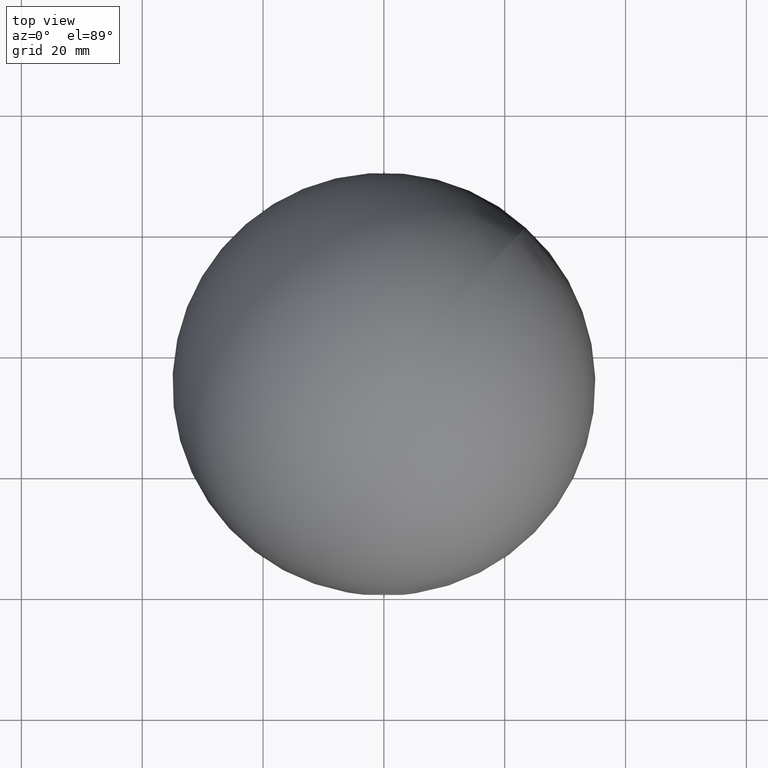
[diagram: clean part render]
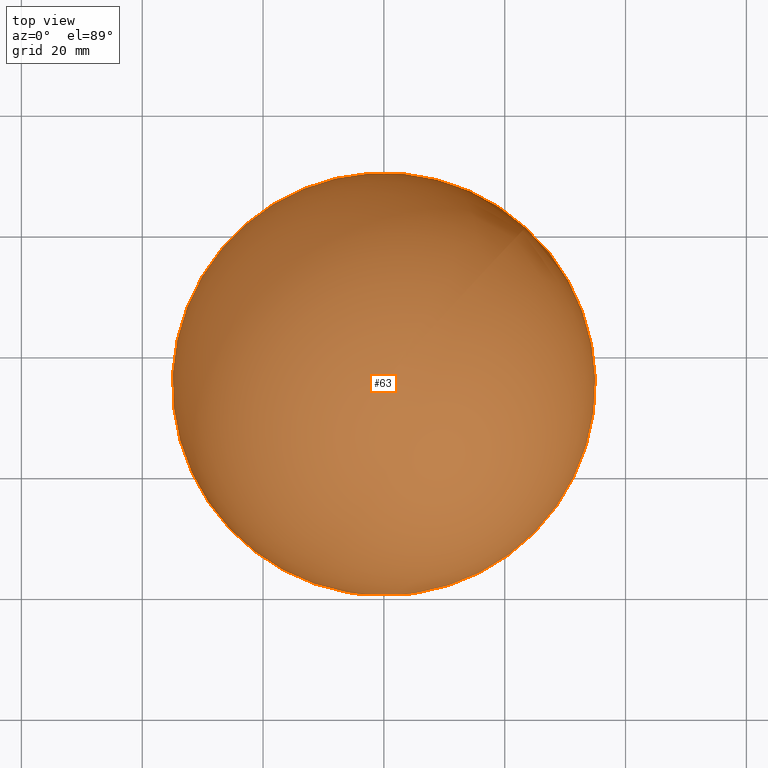
[diagram: same view with one face highlighted and labeled with its STEP entity id]
A machine part, top view. The second image highlights one B-rep face of the part: STEP entity #63.
In plain terms, the highlighted spherical surface has radius 35 mm.
Its self-contained STEP definition (entity closure, byte-faithful):
#4 = DIRECTION ( 'NONE',  ( -0.000000000000000000, -1.000000000000000000, -0.000000000000000000 ) ) ;
#15 = VERTEX_POINT ( 'NONE', #104 ) ;
#23 = DIRECTION ( 'NONE',  ( -0.000000000000000000, 0.000000000000000000, -1.000000000000000000 ) ) ;
#47 = CARTESIAN_POINT ( 'NONE',  ( -6.933347799794072061E-32, 35.00000000000000000, 0.000000000000000000 ) ) ;
#48 = EDGE_LOOP ( 'NONE', ( #84 ) ) ;
#63 = ADVANCED_FACE ( 'NONE', ( #89 ), #110, .T. ) ;
#73 = DIRECTION ( 'NONE',  ( 0.000000000000000000, 0.000000000000000000, 1.000000000000000000 ) ) ;
#80 = EDGE_CURVE ( 'NONE', #15, #15, #91, .T. ) ;
#84 = ORIENTED_EDGE ( 'NONE', *, *, #80, .F. ) ;
#89 = FACE_OUTER_BOUND ( 'NONE', #48, .T. ) ;
#91 = CIRCLE ( 'NONE', #100, 3.399999999999987033 ) ;
#93 = AXIS2_PLACEMENT_3D ( 'NONE', #47, #23, #125 ) ;
#100 = AXIS2_PLACEMENT_3D ( 'NONE', #118, #4, #73 ) ;
#104 = CARTESIAN_POINT ( 'NONE',  ( 0.000000000000000000, 0.1655343086764127225, 3.399999999999987033 ) ) ;
#110 = SPHERICAL_SURFACE ( 'NONE', #93, 35.00000000000000000 ) ;
#118 = CARTESIAN_POINT ( 'NONE',  ( 0.000000000000000000, 0.1655343086764127225, 0.000000000000000000 ) ) ;
#125 = DIRECTION ( 'NONE',  ( -1.000000000000000000, -1.982541115402065110E-16, 0.000000000000000000 ) ) ;